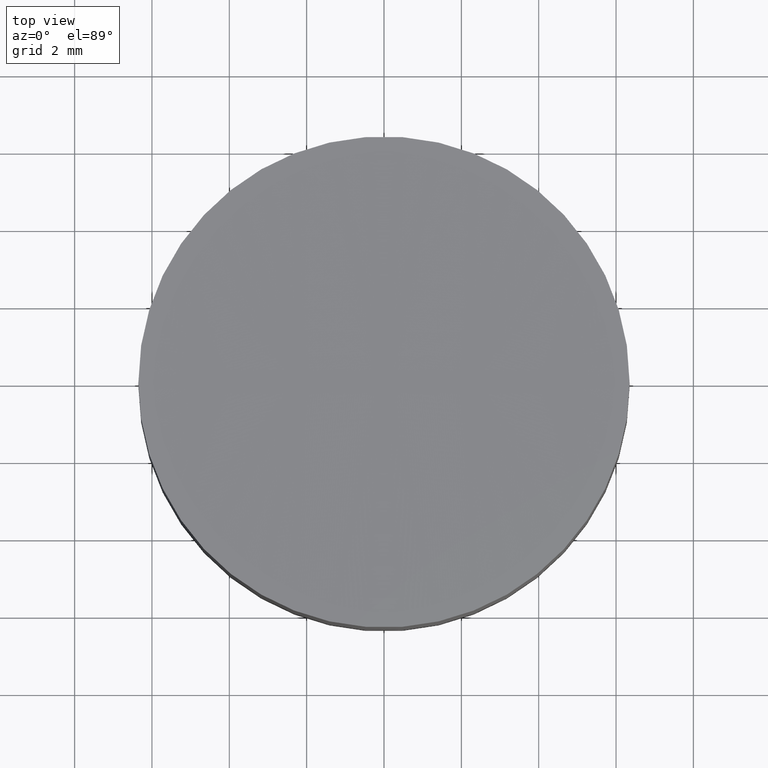
[diagram: clean part render]
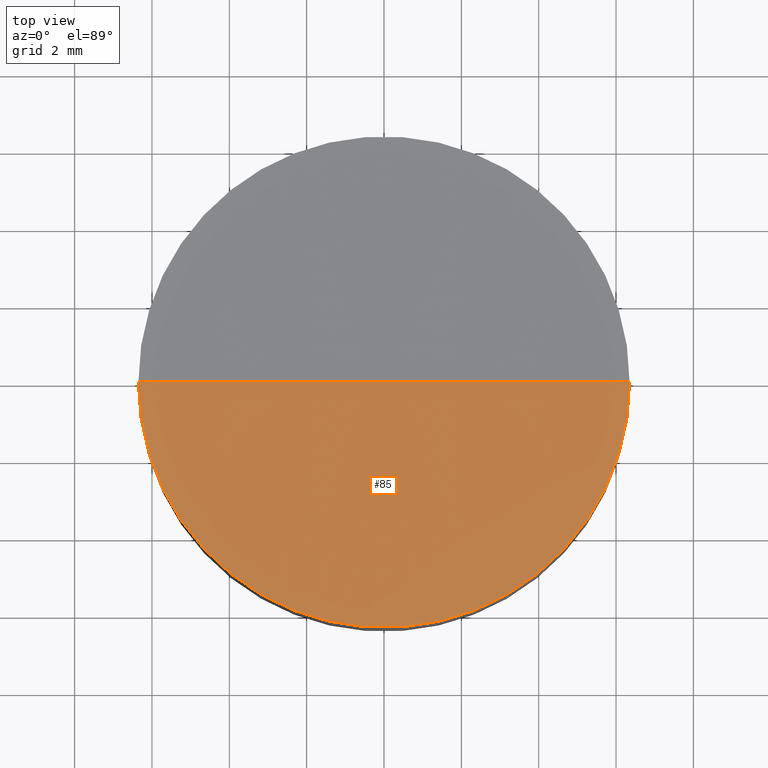
[diagram: same view with one face highlighted and labeled with its STEP entity id]
A machine part, top view. The second image highlights one B-rep face of the part: STEP entity #85.
In plain terms, the highlighted spherical surface has radius 4000 mm.
Its self-contained STEP definition (entity closure, byte-faithful):
#2 = CARTESIAN_POINT ( 'NONE',  ( -6.349999999883296553, 0.000000000000000000, 5.999999999999783284 ) ) ;
#11 = CIRCLE ( 'NONE', #165, 4000.000000000000000 ) ;
#17 = CIRCLE ( 'NONE', #44, 6.349999999883787716 ) ;
#18 = FACE_OUTER_BOUND ( 'NONE', #30, .T. ) ;
#30 = EDGE_LOOP ( 'NONE', ( #72, #48, #100 ) ) ;
#37 = CIRCLE ( 'NONE', #106, 4000.000000000000000 ) ;
#38 = SPHERICAL_SURFACE ( 'NONE', #176, 4000.000000000000000 ) ;
#44 = AXIS2_PLACEMENT_3D ( 'NONE', #81, #114, #130 ) ;
#45 = CARTESIAN_POINT ( 'NONE',  ( 7.367234652688955115E-13, 0.000000000000000000, 5.994959684324285831 ) ) ;
#48 = ORIENTED_EDGE ( 'NONE', *, *, #182, .F. ) ;
#51 = DIRECTION ( 'NONE',  ( 0.000000000000000000, 1.000000000000000000, -0.000000000000000000 ) ) ;
#65 = DIRECTION ( 'NONE',  ( 1.000000000000000000, 1.224646799147353207E-16, 0.000000000000000000 ) ) ;
#72 = ORIENTED_EDGE ( 'NONE', *, *, #95, .F. ) ;
#81 = CARTESIAN_POINT ( 'NONE',  ( 4.917941054394248113E-13, 0.000000000000000000, 5.999999999999783284 ) ) ;
#85 = ADVANCED_FACE ( 'NONE', ( #18 ), #38, .F. ) ;
#89 = DIRECTION ( 'NONE',  ( 0.000000000000000000, 0.000000000000000000, 1.000000000000000000 ) ) ;
#95 = EDGE_CURVE ( 'NONE', #116, #181, #11, .T. ) ;
#100 = ORIENTED_EDGE ( 'NONE', *, *, #131, .T. ) ;
#106 = AXIS2_PLACEMENT_3D ( 'NONE', #184, #51, #89 ) ;
#114 = DIRECTION ( 'NONE',  ( -0.000000000000000000, -0.000000000000000000, -1.000000000000000000 ) ) ;
#116 = VERTEX_POINT ( 'NONE', #2 ) ;
#121 = DIRECTION ( 'NONE',  ( 1.224646799147353207E-16, -1.000000000000000000, 0.000000000000000000 ) ) ;
#130 = DIRECTION ( 'NONE',  ( 1.000000000000000000, 0.000000000000000000, 0.000000000000000000 ) ) ;
#131 = EDGE_CURVE ( 'NONE', #178, #181, #37, .T. ) ;
#136 = CARTESIAN_POINT ( 'NONE',  ( 4.917941054394248113E-13, 0.000000000000000000, 4005.994959684324385 ) ) ;
#159 = DIRECTION ( 'NONE',  ( 1.000000000000000000, 0.000000000000000000, 0.000000000000000000 ) ) ;
#165 = AXIS2_PLACEMENT_3D ( 'NONE', #186, #121, #65 ) ;
#176 = AXIS2_PLACEMENT_3D ( 'NONE', #136, #201, #159 ) ;
#178 = VERTEX_POINT ( 'NONE', #194 ) ;
#181 = VERTEX_POINT ( 'NONE', #45 ) ;
#182 = EDGE_CURVE ( 'NONE', #178, #116, #17, .T. ) ;
#184 = CARTESIAN_POINT ( 'NONE',  ( 4.917941054394248113E-13, 0.000000000000000000, 4005.994959684324385 ) ) ;
#186 = CARTESIAN_POINT ( 'NONE',  ( 4.917941054394248113E-13, 0.000000000000000000, 4005.994959684324385 ) ) ;
#194 = CARTESIAN_POINT ( 'NONE',  ( 6.349999999884279767, 7.776507174514834704E-16, 5.999999999999783284 ) ) ;
#201 = DIRECTION ( 'NONE',  ( 0.000000000000000000, -1.000000000000000000, -0.000000000000000000 ) ) ;